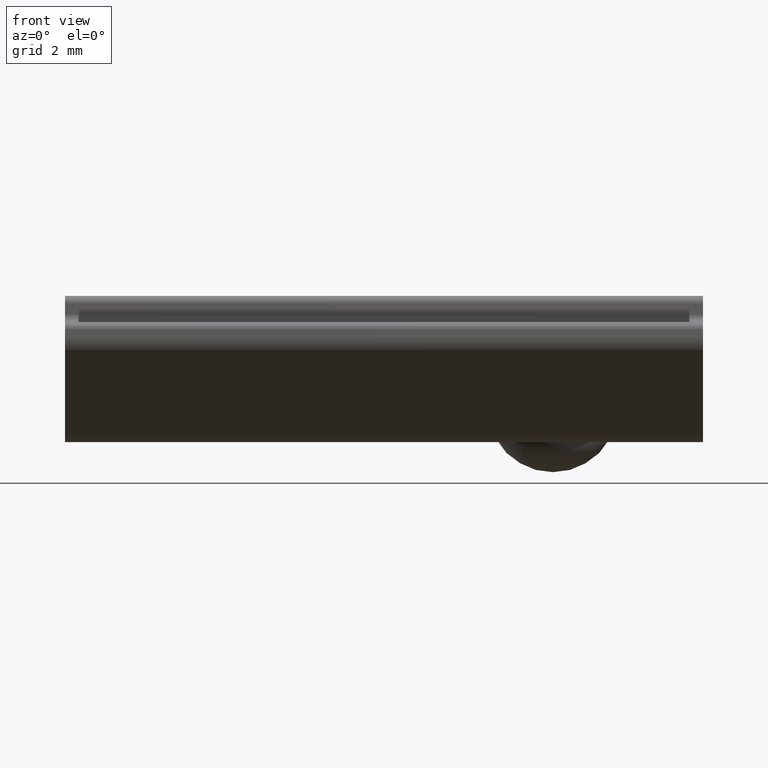
[diagram: clean part render]
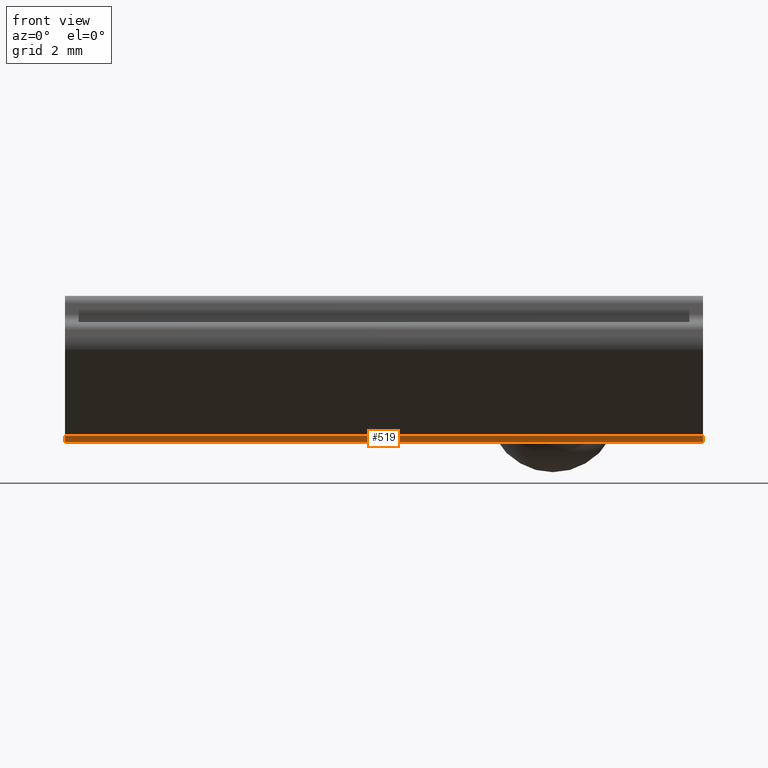
[diagram: same view with one face highlighted and labeled with its STEP entity id]
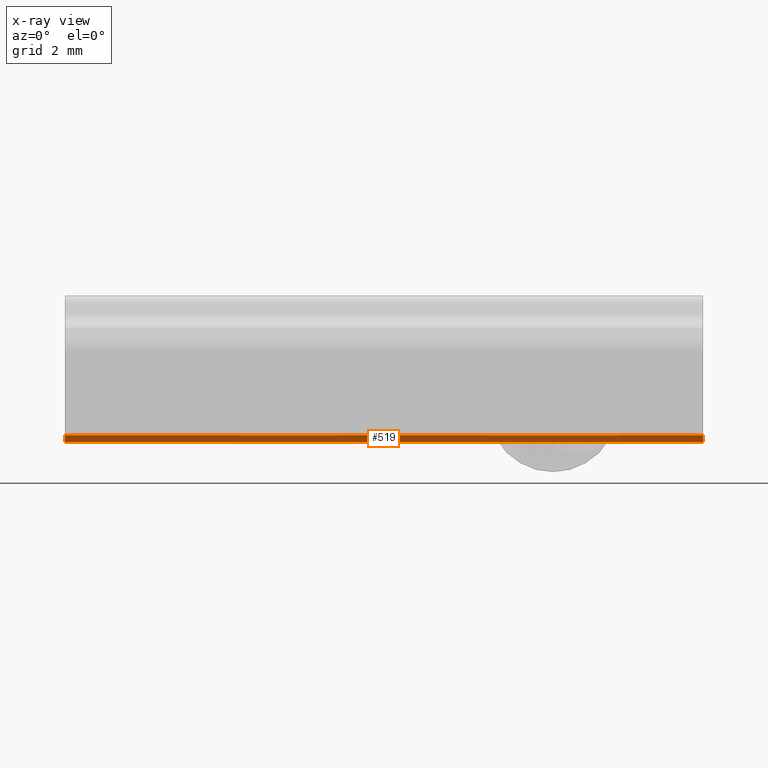
[diagram: x-ray of the same camera — body ghosted, the highlighted face saturated]
A machine part, front view. The second image highlights one B-rep face of the part: STEP entity #519.
The next image is the same camera in x-ray: the body ghosted, the highlighted face saturated — about 0% of this face is hidden behind the body in this view.
In plain terms, the highlighted cylindrical surface (edge-blend (fillet) strip) has radius 0.5 mm, axis along (1, 0, 0).
Its self-contained STEP definition (entity closure, byte-faithful):
#18=B_SPLINE_CURVE_WITH_KNOTS('',3,(#801,#802,#803,#804,#805,#806,#807),
 .UNSPECIFIED.,.F.,.F.,(4,3,4),(-0.022314094032762,0.,0.0223140940327621),
 .UNSPECIFIED.);
#20=CYLINDRICAL_SURFACE('',#564,0.499999999999999);
#35=FACE_OUTER_BOUND('',#64,.T.);
#64=EDGE_LOOP('',(#353,#354,#355,#356,#357,#358));
#92=LINE('',#793,#138);
#95=LINE('',#809,#141);
#96=LINE('',#813,#142);
#138=VECTOR('',#627,1000.);
#141=VECTOR('',#634,1000.);
#142=VECTOR('',#637,1000.);
#187=CIRCLE('',#565,0.499999999999999);
#188=CIRCLE('',#566,0.499999999999999);
#217=VERTEX_POINT('',#790);
#218=VERTEX_POINT('',#792);
#221=VERTEX_POINT('',#800);
#222=VERTEX_POINT('',#808);
#223=VERTEX_POINT('',#810);
#224=VERTEX_POINT('',#812);
#270=EDGE_CURVE('',#218,#217,#92,.T.);
#274=EDGE_CURVE('',#217,#221,#18,.T.);
#275=EDGE_CURVE('',#221,#222,#95,.T.);
#276=EDGE_CURVE('',#222,#223,#187,.T.);
#277=EDGE_CURVE('',#224,#223,#96,.T.);
#278=EDGE_CURVE('',#218,#224,#188,.T.);
#353=ORIENTED_EDGE('',*,*,#274,.T.);
#354=ORIENTED_EDGE('',*,*,#275,.T.);
#355=ORIENTED_EDGE('',*,*,#276,.T.);
#356=ORIENTED_EDGE('',*,*,#277,.F.);
#357=ORIENTED_EDGE('',*,*,#278,.F.);
#358=ORIENTED_EDGE('',*,*,#270,.T.);
#519=ADVANCED_FACE('',(#35),#20,.T.);
#564=AXIS2_PLACEMENT_3D('',#799,#632,#633);
#565=AXIS2_PLACEMENT_3D('',#811,#635,#636);
#566=AXIS2_PLACEMENT_3D('',#814,#638,#639);
#627=DIRECTION('',(1.,0.,2.22044604925031E-16));
#632=DIRECTION('center_axis',(1.,0.,2.22044604925031E-16));
#633=DIRECTION('ref_axis',(2.22044604925031E-16,0.,-1.));
#634=DIRECTION('',(1.,0.,2.22044604925031E-16));
#635=DIRECTION('center_axis',(-1.,0.,-2.22044604925031E-16));
#636=DIRECTION('ref_axis',(-2.22044604925031E-16,0.,1.));
#637=DIRECTION('',(1.,0.,2.22044604925031E-16));
#638=DIRECTION('center_axis',(-1.,0.,-2.22044604925031E-16));
#639=DIRECTION('ref_axis',(-2.22044604925031E-16,0.,1.));
#790=CARTESIAN_POINT('',(-5.02721272931497,-1.73518712986157,-7.70000000000001));
#792=CARTESIAN_POINT('',(-17.8,-1.73518712986157,-7.70000000000001));
#793=CARTESIAN_POINT('',(-17.8,-1.73518712986157,-7.70000000000001));
#799=CARTESIAN_POINT('Origin',(-17.8,-1.73518712986157,-7.20000000000001));
#800=CARTESIAN_POINT('',(-4.57278727068503,-1.73518712986157,-7.70000000000001));
#801=CARTESIAN_POINT('Ctrl Pts',(-5.02721272931497,-1.73518712986157,-7.70000000000001));
#802=CARTESIAN_POINT('Ctrl Pts',(-4.95072780426874,-1.74520238889164,-7.70000000000001));
#803=CARTESIAN_POINT('Ctrl Pts',(-4.87438031344254,-1.75,-7.6997805307115));
#804=CARTESIAN_POINT('Ctrl Pts',(-4.8,-1.75,-7.6997805307115));
#805=CARTESIAN_POINT('Ctrl Pts',(-4.72561968655746,-1.75,-7.6997805307115));
#806=CARTESIAN_POINT('Ctrl Pts',(-4.64927219573125,-1.74520238889164,-7.70000000000001));
#807=CARTESIAN_POINT('Ctrl Pts',(-4.57278727068503,-1.73518712986157,-7.70000000000001));
#808=CARTESIAN_POINT('',(-0.799999999999996,-1.73518712986157,-7.70000000000001));
#809=CARTESIAN_POINT('',(-17.8,-1.73518712986157,-7.70000000000001));
#810=CARTESIAN_POINT('',(-0.799999999999996,-2.11820935142106,-7.52139380484328));
#811=CARTESIAN_POINT('Origin',(-0.799999999999996,-1.73518712986157,-7.20000000000001));
#812=CARTESIAN_POINT('',(-17.8,-2.11820935142106,-7.52139380484328));
#813=CARTESIAN_POINT('',(-17.8,-2.11820935142106,-7.52139380484328));
#814=CARTESIAN_POINT('Origin',(-17.8,-1.73518712986157,-7.20000000000001));